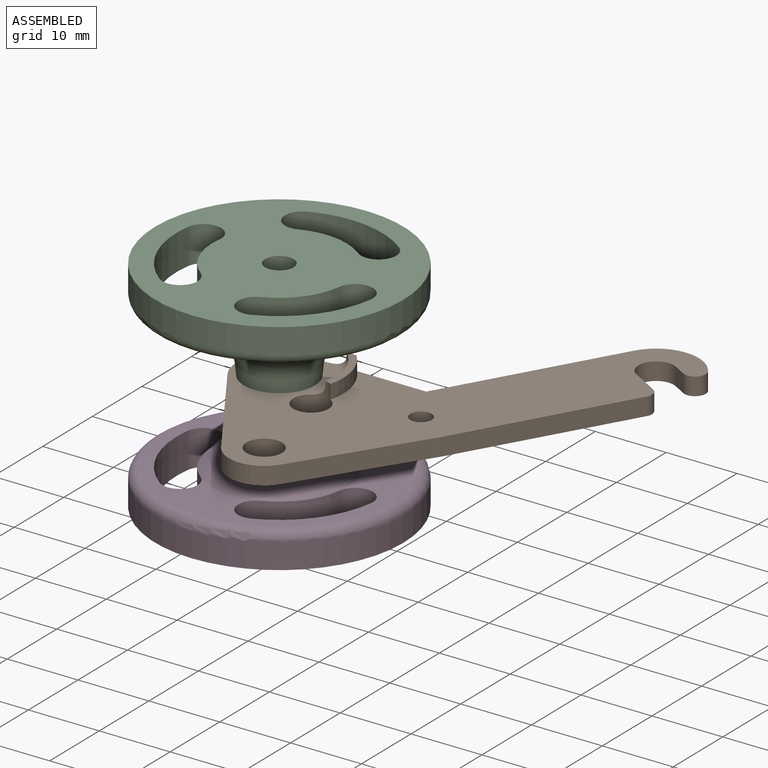
[diagram: assembled view]
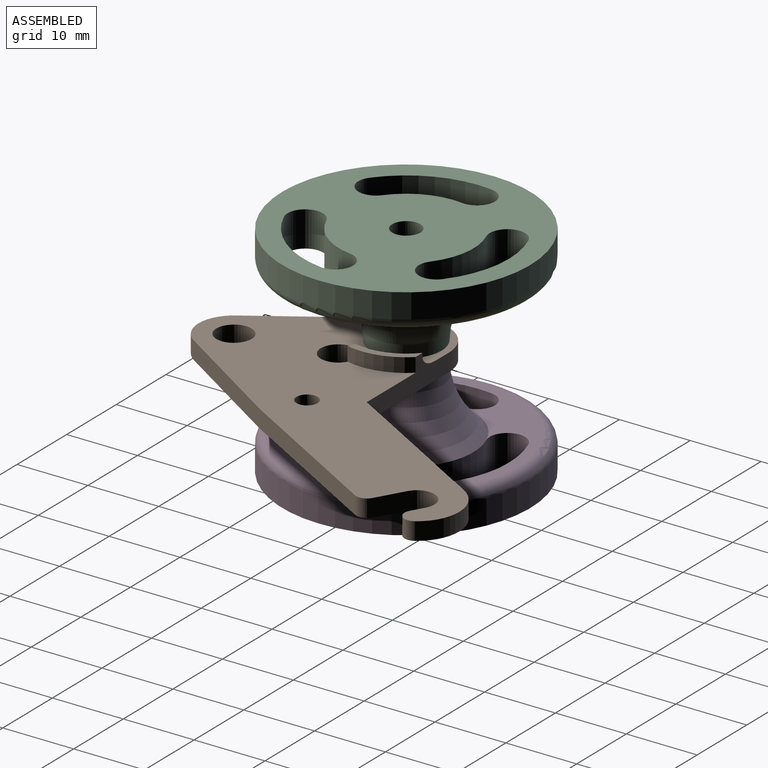
[diagram: assembled view, second angle]
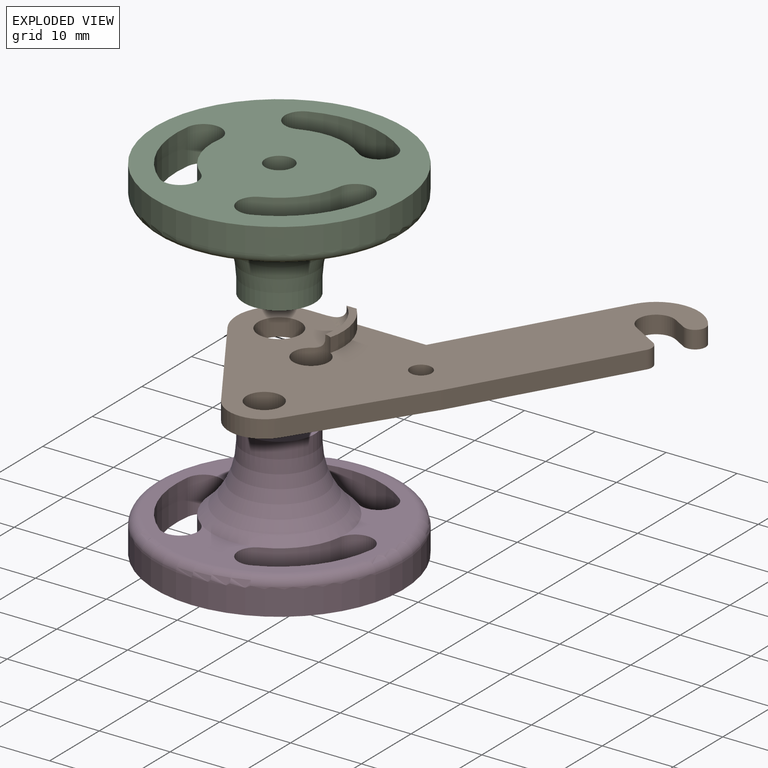
[diagram: exploded view]
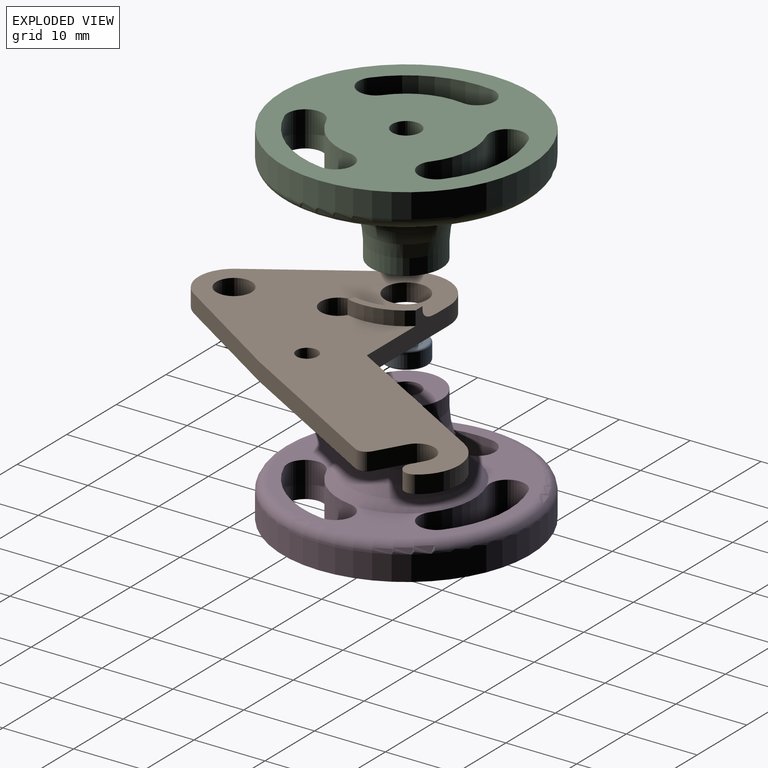
[diagram: exploded view, second angle]
ASSEMBLY  parts=4 mates=5
PART A: 14 faces, bbox 6.5x6.5x2.5 mm
  f0: plane 4x4mm, normal (0,0,-1), area 5.5mm2, adj f2,f9
  f1: plane 4x4mm, normal (0,0,1), area 5.5mm2, adj f2,f6
  f2: cylinder r=1.5mm len=3mm, axis (0,0,-1), area 23.6mm2, adj f0,f1
  f3: cylinder r=3mm len=6mm, axis (0,0,-1), area 37.7mm2, adj f12,f13
  f4: plane 5.5x5.5mm, normal (0,0,1), area 4.1mm2, adj f7,f13
  f5: plane 5.5x5.5mm, normal (0,0,-1), area 4.1mm2, adj f10,f12
  f6: cylinder r=2mm len=4mm, axis (0,0,1), area 0.3mm2, adj f1,f8
  f7: cylinder r=2.5mm len=5mm, axis (0,0,1), area 0.4mm2, adj f4,f8
  f8: plane 5x5mm, normal (0,0,1), area 7.1mm2, adj f6,f7
  f9: cylinder r=2mm len=4mm, axis (0,0,-1), area 0.3mm2, adj f0,f11
  f10: cylinder r=2.5mm len=5mm, axis (0,0,-1), area 0.4mm2, adj f5,f11
  f11: plane 5x5mm, normal (0,0,-1), area 7.1mm2, adj f9,f10
  f12: torus R=2.75mm, axis (0,0,1), area 7.2mm2, adj f3,f5
  f13: torus R=2.75mm, axis (0,0,1), area 7.2mm2, adj f3,f4
PART B: 24 faces, bbox 46.3x54.3x5.1 mm
  f0: plane 54.3x46.29mm, normal (0,0,1), area 833.2mm2, adj f1,f2,f3,f4,f5,f6,f7,f8
  f1: plane 16.78x10.84mm, normal (-0.84,-0.54,0), area 49.9mm2, adj f0,f2,f16,f17
  f2: cylinder r=5mm len=8.4mm, axis (0,0,-1), area 24.9mm2, adj f0,f1,f3,f17
  f3: plane 16.78x10.84mm, normal (0.84,-0.54,0), area 49.9mm2, adj f0,f2,f4,f17
  f4: cylinder r=6mm len=2.5mm, axis (0,0,-1), area 0.8mm2, adj f0,f3,f5,f17
  f5: plane 22.52x13mm, normal (0.87,-0.5,0), area 65mm2, adj f0,f4,f17,f22
  f6: plane 3.9x2.5mm, normal (0.5,0.87,0), area 11.2mm2, adj f0,f7,f17,f22
  f7: cylinder r=2.5mm len=4.67mm, axis (0,0,-1), area 19.6mm2, adj f0,f6,f8,f17
  f8: plane 2.5x1.79mm, normal (-0.5,-0.87,0), area 5.2mm2, adj f0,f7,f17,f23
  f9: cylinder r=6mm len=10.24mm, axis (0,0,-1), area 30.7mm2, adj f0,f10,f17,f23
  f10: plane 22.98x13.27mm, normal (-0.87,0.5,0), area 66.3mm2, adj f0,f9,f11,f17
  f11: plane 16.54x4.5mm, normal (0,1,0), area 45mm2, adj f0,f10,f16,f17,f18,f19,f20,f21
  f12: cylinder r=3mm len=6mm, axis (0,0,-1), area 47.1mm2, adj f0,f17
  f13: cylinder r=1.5mm len=3mm, axis (0,0,-1), area 23.6mm2, adj f0,f17
  f14: cylinder r=2.5mm len=5mm, axis (0,0,-1), area 39.3mm2, adj f0,f17
  f15: cylinder r=2.5mm len=5mm, axis (0,0,-1), area 41.8mm2, adj f0,f17,f18,f19,f20,f21
  f16: cylinder r=6mm len=9.26mm, axis (0,0,-1), area 32.2mm2, adj f0,f1,f11,f17
  f17: plane 54.3x46.29mm, normal (0,0,-1), area 855.5mm2, adj f1,f2,f3,f4,f5,f6,f7,f8
  f18: cylinder r=9mm len=8.16mm, axis (0,0,-1), area 17.5mm2, adj f0,f11,f15,f20
  f19: cylinder r=8mm len=7.85mm, axis (0,0,-1), area 4.3mm2, adj f11,f15,f20,f21
  f20: plane 8.16x3.71mm, normal (0,0,1), area 8.7mm2, adj f11,f15,f18,f19
  f21: torus R=6.5mm, axis (0,0,1), area 21.1mm2, adj f0,f11,f15,f19
  f22: cylinder r=1.5mm len=2.5mm, axis (0,0,-1), area 5.9mm2, adj f0,f5,f6,f17
  f23: cylinder r=1.5mm len=2.5mm, axis (0,0,-1), area 10mm2, adj f0,f8,f9,f17
PART C: 20 faces, bbox 37.9x37.9x16.5 mm
  f0: plane 35x35mm, normal (0,0,1), area 702.1mm2, adj f2,f3,f4,f5,f6,f7,f8,f9
  f1: plane 32x32mm, normal (0,0,-1), area 273.3mm2, adj f4,f6,f7,f9,f10,f11,f12,f13
  f2: cylinder r=2mm len=16.5mm, axis (0,0,-1), area 207.3mm2, adj f0,f19
  f3: cylinder r=17.5mm len=35mm, axis (0,0,-1), area 384.8mm2, adj f0,f17
  f4: cylinder r=2.5mm len=5mm, axis (0,0,-1), area 39.3mm2, adj f0,f1,f5,f7
  f5: cylinder r=9.5mm len=8.23mm, axis (0,0,-1), area 49.7mm2, adj f0,f4,f6,f16
  f6: cylinder r=2.5mm len=5mm, axis (0,0,-1), area 39.3mm2, adj f0,f1,f5,f7
  f7: cylinder r=14.5mm len=12.56mm, axis (0,0,-1), area 75.9mm2, adj f0,f1,f4,f6
  f8: cylinder r=9.5mm len=9.5mm, axis (0,0,-1), area 49.7mm2, adj f0,f9,f11,f16
  f9: cylinder r=2.5mm len=5mm, axis (0,0,-1), area 39.3mm2, adj f0,f1,f8,f10
  f10: cylinder r=14.5mm len=14.5mm, axis (0,0,-1), area 75.9mm2, adj f0,f1,f9,f11
  f11: cylinder r=2.5mm len=5mm, axis (0,0,-1), area 39.3mm2, adj f0,f1,f8,f10
  f12: cylinder r=2.5mm len=5mm, axis (0,0,-1), area 39.3mm2, adj f0,f1,f13,f15
  f13: cylinder r=14.5mm len=12.56mm, axis (0,0,-1), area 75.9mm2, adj f0,f1,f12,f14
  f14: cylinder r=2.5mm len=5mm, axis (0,0,-1), area 39.3mm2, adj f0,f1,f13,f15
  f15: cylinder r=9.5mm len=8.23mm, axis (0,0,-1), area 49.7mm2, adj f0,f12,f14,f16
  f16: torus R=17.21mm, axis (0,0,1), area 438.4mm2, adj f1,f5,f8,f15,f18
  f17: torus R=16mm, axis (0,0,1), area 251mm2, adj f1,f3
  f18: cylinder r=5mm len=10mm, axis (0,0,1), area 70.7mm2, adj f16,f19
  f19: plane 10x10mm, normal (0,0,-1), area 66mm2, adj f2,f18
PART D: same geometry as C
PLACE A rot(axis=(-0.32,-0.85,0.42),0deg) t=(-14.06,2.1,31.63)mm
PLACE B rot(axis=(-0.32,-0.85,0.42),0deg) t=(-14.06,2.1,31.63)mm fixed
PLACE C rot(axis=(0,0,1),141.9deg) t=(-14.06,2.1,43.38)mm
PLACE D rot(axis=(0.33,0.95,0),180deg) t=(-14.06,2.1,22.38)mm
MATE cylindrical B.f12 <-> A.f3  axis (0,0,-1) through (-14.06,2.1,32.88)mm
MATE cylindrical C.f2 <-> A.f2  axis (0,0,-1) through (-14.06,2.1,40.13)mm
MATE cylindrical D.f2 <-> A.f3  axis (0,0,1) through (-14.06,2.1,25.63)mm
MATE planar B.f16 <-> A.f3  axis (0,0,-1) through (-14.06,2.1,32.88)mm
MATE cylindrical C.f14 <-> D.f6  axis (0,0,-1) through (-25.94,3.79,45.88)mm
